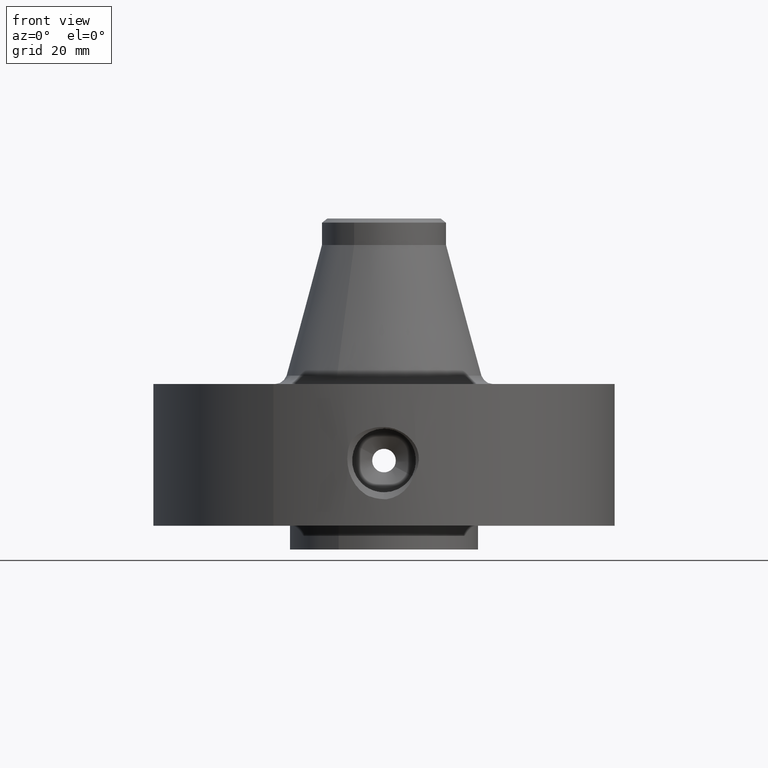
[diagram: clean part render]
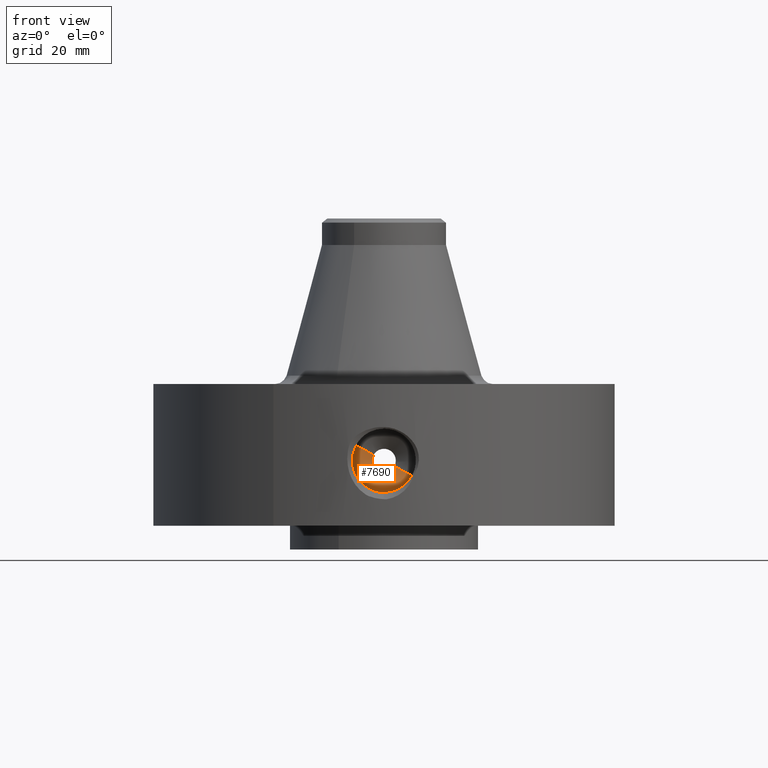
[diagram: same view with one face highlighted and labeled with its STEP entity id]
A machine part, front view. The second image highlights one B-rep face of the part: STEP entity #7690.
In plain terms, the highlighted conical surface has half-angle 60 deg.
Its self-contained STEP definition (entity closure, byte-faithful):
#4119=AXIS2_PLACEMENT_3D('Circle Axis2P3D',#4117,#4118,$) ;
#7651=AXIS2_PLACEMENT_3D('Cone Axis2P3D',#7648,#7649,#7650) ;
#7681=AXIS2_PLACEMENT_3D('Circle Axis2P3D',#7679,#7680,$) ;
#4095=CARTESIAN_POINT('Vertex',(0.109697820237,-1.44321662097,0.880071807678)) ;
#4102=CARTESIAN_POINT('Vertex',(-0.109697820237,-1.44321662097,0.99992819233)) ;
#4117=CARTESIAN_POINT('Axis2P3D Location',(8.82459222565E-016,-1.44321662097,0.940000000004)) ;
#7648=CARTESIAN_POINT('Axis2P3D Location',(8.82459222565E-016,-1.44321662097,0.940000000004)) ;
#7653=CARTESIAN_POINT('Line Origine',(0.202254259083,-1.50410831049,0.829507994685)) ;
#7657=CARTESIAN_POINT('Vertex',(0.29481069793,-1.56500000001,0.778944181692)) ;
#7664=CARTESIAN_POINT('Vertex',(-0.29481069793,-1.56500000001,1.10105581832)) ;
#7667=CARTESIAN_POINT('Line Origine',(-0.202254259083,-1.50410831049,1.05049200532)) ;
#7679=CARTESIAN_POINT('Axis2P3D Location',(8.60087978767E-016,-1.56500000001,0.940000000004)) ;
#4118=DIRECTION('Axis2P3D Direction',(7.2321661367E-018,0.0393700787402,0.)) ;
#7649=DIRECTION('Axis2P3D Direction',(-7.2321661367E-018,-0.0393700787402,0.)) ;
#7650=DIRECTION('Axis2P3D XDirection',(-0.0345504945626,4.23385151202E-018,0.0188750212049)) ;
#7654=DIRECTION('Vector Direction',(0.0299216060045,-0.0196850393701,-0.0163462478604)) ;
#7668=DIRECTION('Vector Direction',(-0.0299216060045,-0.0196850393701,0.0163462478604)) ;
#7680=DIRECTION('Axis2P3D Direction',(-7.2321661367E-018,-0.0393700787402,0.)) ;
#7655=VECTOR('Line Direction',#7654,0.0393700787402) ;
#7669=VECTOR('Line Direction',#7668,0.0393700787402) ;
#7685=ORIENTED_EDGE('',*,*,#7671,.T.) ;
#7686=ORIENTED_EDGE('',*,*,#7683,.F.) ;
#7687=ORIENTED_EDGE('',*,*,#7659,.F.) ;
#7688=ORIENTED_EDGE('',*,*,#4121,.T.) ;
#7690=ADVANCED_FACE('PartBody',(#7689),#7652,.F.) ;
#4120=CIRCLE('generated circle',#4119,0.125000000001) ;
#7682=CIRCLE('generated circle',#7681,0.335935000001) ;
#7652=CONICAL_SURFACE('Cone',#7651,0.125,1.0471975512) ;
#4121=EDGE_CURVE('',#4096,#4103,#4120,.T.) ;
#7659=EDGE_CURVE('',#4096,#7658,#7656,.T.) ;
#7671=EDGE_CURVE('',#4103,#7665,#7670,.T.) ;
#7683=EDGE_CURVE('',#7658,#7665,#7682,.F.) ;
#7684=EDGE_LOOP('',(#7685,#7686,#7687,#7688)) ;
#7689=FACE_OUTER_BOUND('',#7684,.T.) ;
#7656=LINE('Line',#7653,#7655) ;
#7670=LINE('Line',#7667,#7669) ;
#4096=VERTEX_POINT('',#4095) ;
#4103=VERTEX_POINT('',#4102) ;
#7658=VERTEX_POINT('',#7657) ;
#7665=VERTEX_POINT('',#7664) ;